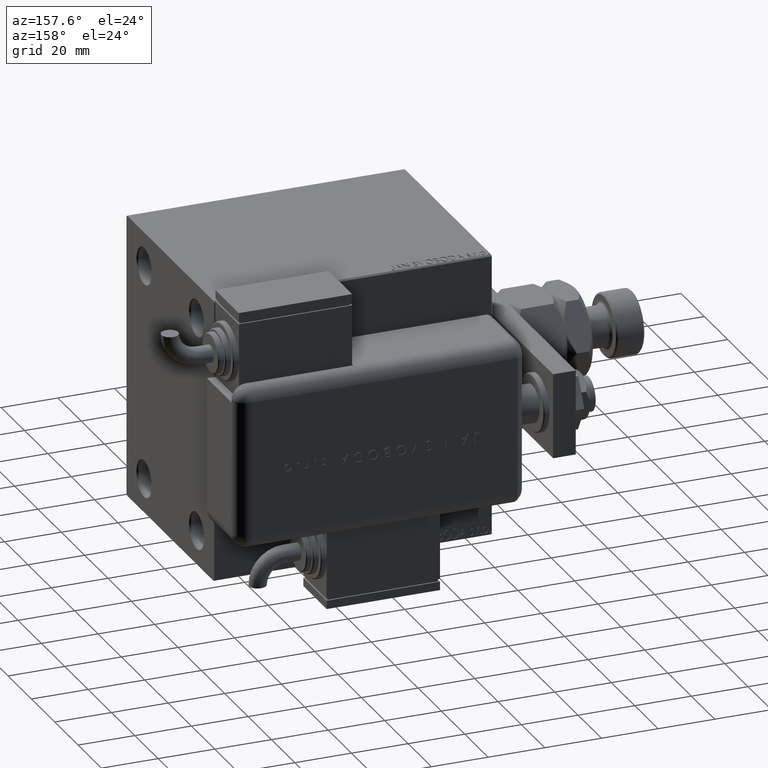
[diagram: clean part render]
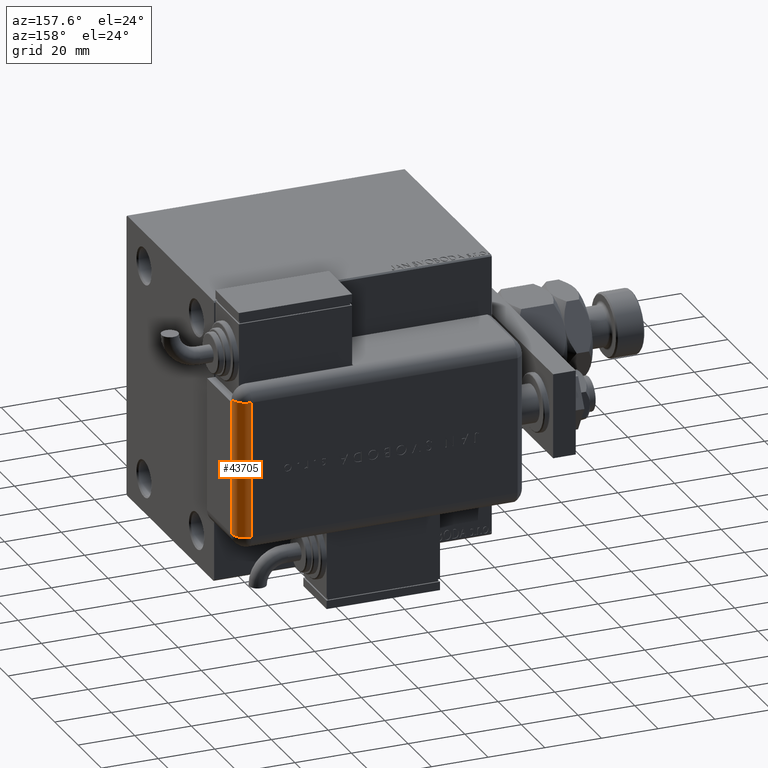
[diagram: same view with one face highlighted and labeled with its STEP entity id]
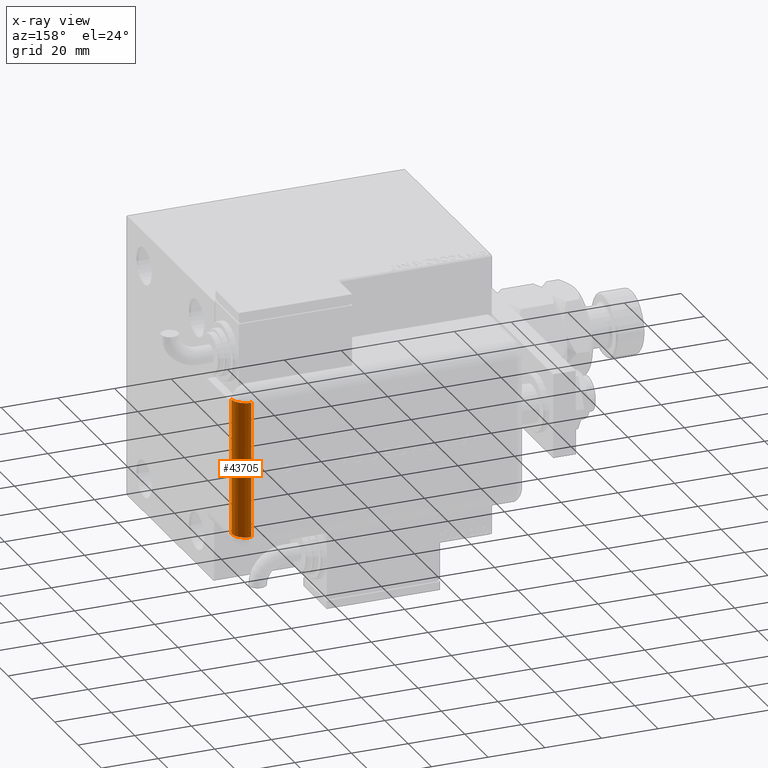
[diagram: x-ray of the same camera — body ghosted, the highlighted face saturated]
A machine part, auxiliary view. The second image highlights one B-rep face of the part: STEP entity #43705.
The next image is the same camera in x-ray: the body ghosted, the highlighted face saturated — about 0% of this face is hidden behind the body in this view.
In plain terms, the highlighted cylindrical surface (edge-blend (fillet) strip) has radius 5 mm, axis along (0, 0, 1).
Its self-contained STEP definition (entity closure, byte-faithful):
#1347 = AXIS2_PLACEMENT_3D ( 'NONE', #23062, #60980, #8994 ) ;
#4553 = VECTOR ( 'NONE', #42071, 1000.000000000000000 ) ;
#5494 = EDGE_CURVE ( 'NONE', #39200, #11455, #12063, .T. ) ;
#5843 = CARTESIAN_POINT ( 'NONE',  ( 23.00000000000000000, 21.00000000000000000, 0.004001601281286050471 ) ) ;
#6099 = CARTESIAN_POINT ( 'NONE',  ( 23.99999999999999289, 21.00000000000000000, 0.004001601281283882067 ) ) ;
#8994 = DIRECTION ( 'NONE',  ( 0.000000000000000000, 0.000000000000000000, -1.000000000000000000 ) ) ;
#10132 = CIRCLE ( 'NONE', #18128, 5.000000000000000000 ) ;
#10470 = EDGE_CURVE ( 'NONE', #13003, #35546, #10132, .T. ) ;
#11103 = DIRECTION ( 'NONE',  ( -1.000000000000000000, -0.000000000000000000, 0.000000000000000000 ) ) ;
#11455 = VERTEX_POINT ( 'NONE', #60395 ) ;
#11729 = DIRECTION ( 'NONE',  ( 0.000000000000000000, 1.526556658859590243E-14, -1.000000000000000000 ) ) ;
#11822 = CARTESIAN_POINT ( 'NONE',  ( -23.99999999999999645, 25.79999999999998295, 5.000000000000004441 ) ) ;
#12063 = CIRCLE ( 'NONE', #20042, 5.000000000000000000 ) ;
#13003 = VERTEX_POINT ( 'NONE', #26400 ) ;
#13540 = ORIENTED_EDGE ( 'NONE', *, *, #44722, .F. ) ;
#18128 = AXIS2_PLACEMENT_3D ( 'NONE', #31544, #60071, #26540 ) ;
#19040 = DIRECTION ( 'NONE',  ( 0.000000000000000000, 0.000000000000000000, -1.000000000000000000 ) ) ;
#19224 = ORIENTED_EDGE ( 'NONE', *, *, #10470, .T. ) ;
#20042 = AXIS2_PLACEMENT_3D ( 'NONE', #23748, #42852, #19040 ) ;
#20261 = EDGE_CURVE ( 'NONE', #50660, #49172, #33536, .T. ) ;
#23062 = CARTESIAN_POINT ( 'NONE',  ( -28.99999999999999645, 20.79999999999998295, 5.000000000000004441 ) ) ;
#23748 = CARTESIAN_POINT ( 'NONE',  ( 23.99999999999999289, 20.79999999999998295, 5.000000000000000000 ) ) ;
#25386 = ORIENTED_EDGE ( 'NONE', *, *, #61755, .F. ) ;
#26232 = EDGE_LOOP ( 'NONE', ( #50049, #59530, #25386, #19224, #13540, #59341 ) ) ;
#26400 = CARTESIAN_POINT ( 'NONE',  ( -23.99999999999999645, 20.79999999999998295, 0.000000000000000000 ) ) ;
#26540 = DIRECTION ( 'NONE',  ( 0.000000000000000000, 0.000000000000000000, -1.000000000000000000 ) ) ;
#27459 = CYLINDRICAL_SURFACE ( 'NONE', #1347, 5.000000000000000000 ) ;
#31544 = CARTESIAN_POINT ( 'NONE',  ( -23.99999999999999645, 20.79999999999998295, 5.000000000000002665 ) ) ;
#33536 = CIRCLE ( 'NONE', #59578, 5.000000000000000000 ) ;
#35546 = VERTEX_POINT ( 'NONE', #11822 ) ;
#36377 = VECTOR ( 'NONE', #42486, 1000.000000000000000 ) ;
#39200 = VERTEX_POINT ( 'NONE', #6099 ) ;
#41143 = CARTESIAN_POINT ( 'NONE',  ( 23.99999999999999289, 20.79999999999998295, 0.000000000000000000 ) ) ;
#41491 = VECTOR ( 'NONE', #42375, 1000.000000000000000 ) ;
#42071 = DIRECTION ( 'NONE',  ( 1.000000000000000000, 0.000000000000000000, 0.000000000000000000 ) ) ;
#42375 = DIRECTION ( 'NONE',  ( 1.000000000000000000, -0.000000000000000000, -0.000000000000000000 ) ) ;
#42486 = DIRECTION ( 'NONE',  ( -1.000000000000000000, 0.000000000000000000, 0.000000000000000000 ) ) ;
#42852 = DIRECTION ( 'NONE',  ( 1.000000000000000000, -0.000000000000000000, 0.000000000000000000 ) ) ;
#43705 = ADVANCED_FACE ( 'NONE', ( #60683 ), #27459, .T. ) ;
#44722 = EDGE_CURVE ( 'NONE', #11455, #35546, #56596, .T. ) ;
#47085 = CARTESIAN_POINT ( 'NONE',  ( -28.99999999999999645, 21.00000000000000000, 0.004001601281286050471 ) ) ;
#49172 = VERTEX_POINT ( 'NONE', #57356 ) ;
#50049 = ORIENTED_EDGE ( 'NONE', *, *, #61817, .F. ) ;
#50660 = VERTEX_POINT ( 'NONE', #5843 ) ;
#51783 = LINE ( 'NONE', #47085, #4553 ) ;
#52503 = CARTESIAN_POINT ( 'NONE',  ( -23.99999999999999645, 25.79999999999998295, 5.000000000000004441 ) ) ;
#53998 = CARTESIAN_POINT ( 'NONE',  ( 23.00000000000000000, 20.79999999999998295, 5.000000000000004441 ) ) ;
#55561 = LINE ( 'NONE', #41143, #41491 ) ;
#56596 = LINE ( 'NONE', #52503, #36377 ) ;
#57356 = CARTESIAN_POINT ( 'NONE',  ( 23.00000000000000000, 20.79999999999998295, 1.734723475976807094E-15 ) ) ;
#59341 = ORIENTED_EDGE ( 'NONE', *, *, #5494, .F. ) ;
#59530 = ORIENTED_EDGE ( 'NONE', *, *, #20261, .T. ) ;
#59578 = AXIS2_PLACEMENT_3D ( 'NONE', #53998, #11103, #11729 ) ;
#60071 = DIRECTION ( 'NONE',  ( 1.000000000000000000, -0.000000000000000000, 0.000000000000000000 ) ) ;
#60395 = CARTESIAN_POINT ( 'NONE',  ( 23.99999999999999289, 25.79999999999998295, 5.000000000000004441 ) ) ;
#60683 = FACE_OUTER_BOUND ( 'NONE', #26232, .T. ) ;
#60980 = DIRECTION ( 'NONE',  ( 1.000000000000000000, 0.000000000000000000, 0.000000000000000000 ) ) ;
#61755 = EDGE_CURVE ( 'NONE', #13003, #49172, #55561, .T. ) ;
#61817 = EDGE_CURVE ( 'NONE', #50660, #39200, #51783, .T. ) ;